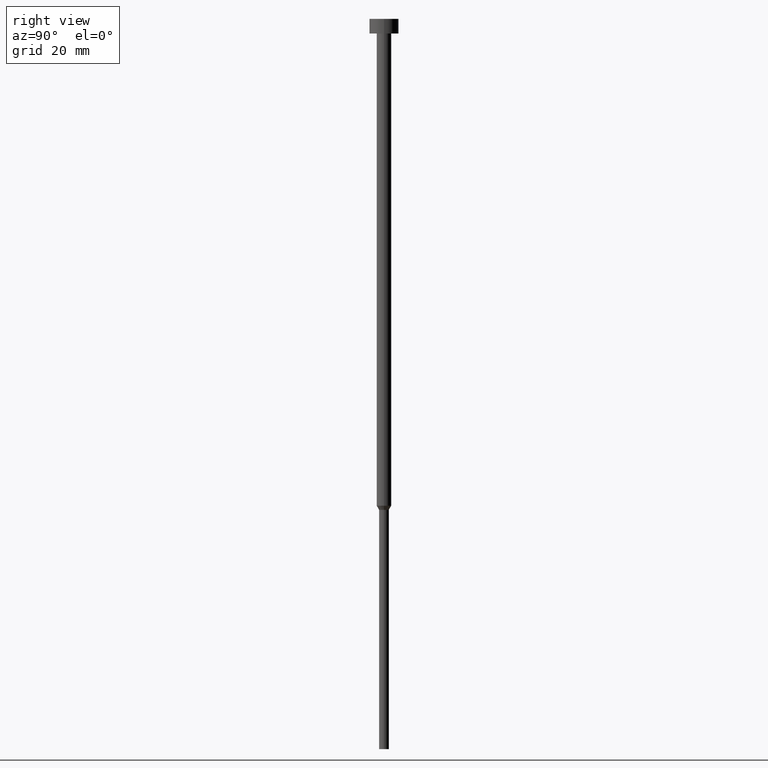
[diagram: clean part render]
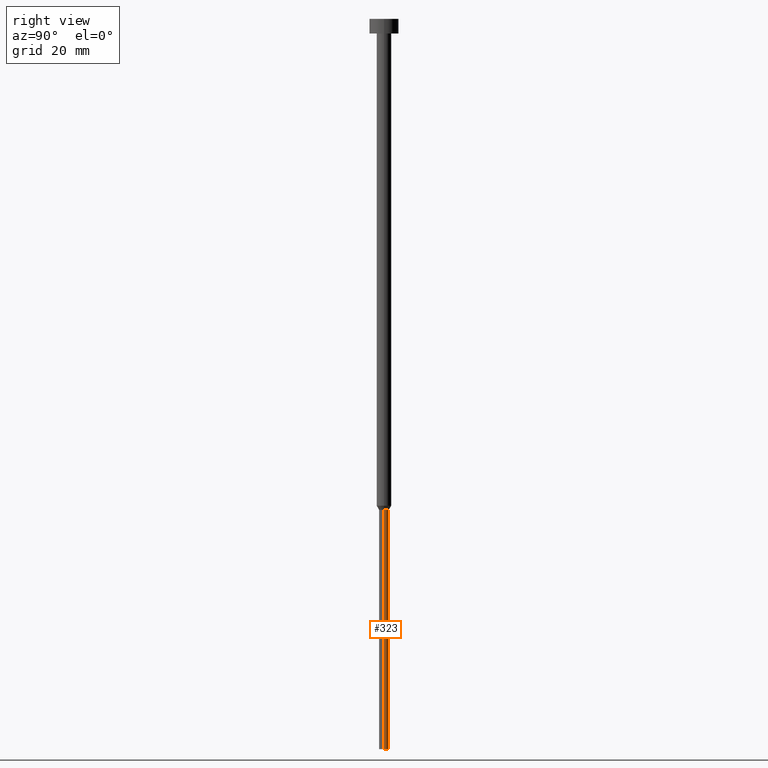
[diagram: same view with one face highlighted and labeled with its STEP entity id]
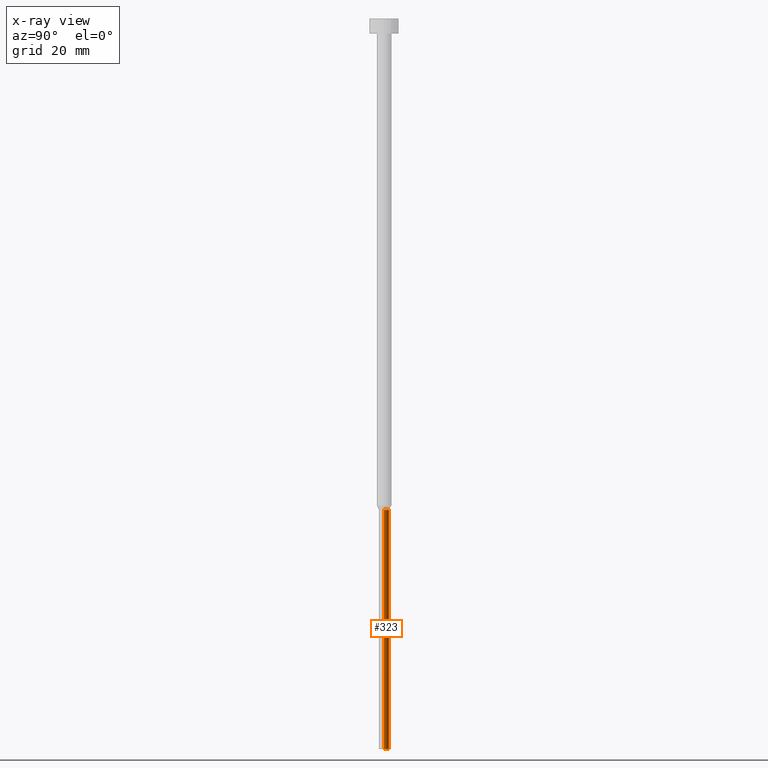
[diagram: x-ray of the same camera — body ghosted, the highlighted face saturated]
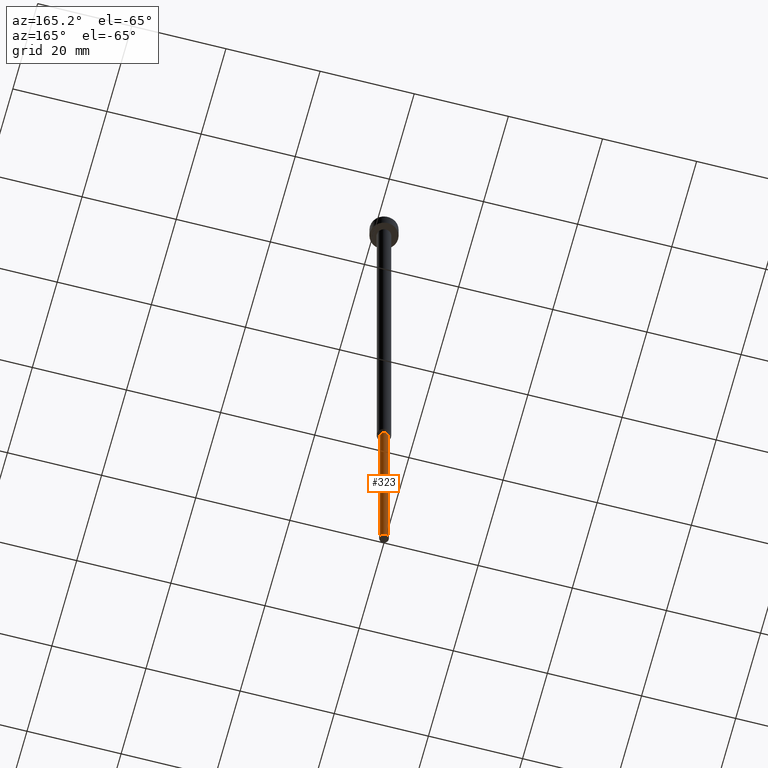
[diagram: same view with one face highlighted and labeled with its STEP entity id]
A machine part, right view. The second image highlights one B-rep face of the part: STEP entity #323.
The next image is the same camera in x-ray: the body ghosted, the highlighted face saturated — about 0% of this face is hidden behind the body in this view.
A second angle (auxiliary view) of the same face is appended — the face is thin or edge-on in the first view.
In plain terms, the highlighted cylindrical surface (edge-blend (fillet) strip) has radius 1 mm, axis along (-0, -0, 1).
Its self-contained STEP definition (entity closure, byte-faithful):
#1 = CARTESIAN_POINT ( 'NONE',  ( 1.000000000000000000, 0.000000000000000000, -150.0000000000000000 ) ) ;
#9 = ORIENTED_EDGE ( 'NONE', *, *, #192, .F. ) ;
#10 = DIRECTION ( 'NONE',  ( 1.000000000000000000, 0.000000000000000000, 0.000000000000000000 ) ) ;
#11 = VECTOR ( 'NONE', #70, 1000.000000000000000 ) ;
#14 = VERTEX_POINT ( 'NONE', #102 ) ;
#19 = DIRECTION ( 'NONE',  ( -0.000000000000000000, -0.000000000000000000, 1.000000000000000000 ) ) ;
#34 = FACE_OUTER_BOUND ( 'NONE', #153, .T. ) ;
#50 = ORIENTED_EDGE ( 'NONE', *, *, #221, .T. ) ;
#68 = CARTESIAN_POINT ( 'NONE',  ( -1.000000000000000000, 1.224646799147353207E-16, 0.000000000000000000 ) ) ;
#70 = DIRECTION ( 'NONE',  ( -0.000000000000000000, -0.000000000000000000, 1.000000000000000000 ) ) ;
#74 = VERTEX_POINT ( 'NONE', #298 ) ;
#84 = AXIS2_PLACEMENT_3D ( 'NONE', #133, #265, #10 ) ;
#102 = CARTESIAN_POINT ( 'NONE',  ( -1.000000000000000000, 1.224646799147353207E-16, -150.0000000000000000 ) ) ;
#105 = EDGE_CURVE ( 'NONE', #215, #74, #148, .T. ) ;
#126 = CYLINDRICAL_SURFACE ( 'NONE', #84, 1.000000000000000000 ) ;
#133 = CARTESIAN_POINT ( 'NONE',  ( 0.000000000000000000, 0.000000000000000000, 0.000000000000000000 ) ) ;
#148 = CIRCLE ( 'NONE', #151, 1.000000000000000000 ) ;
#151 = AXIS2_PLACEMENT_3D ( 'NONE', #326, #19, #295 ) ;
#152 = ORIENTED_EDGE ( 'NONE', *, *, #187, .T. ) ;
#153 = EDGE_LOOP ( 'NONE', ( #152, #50, #235, #9 ) ) ;
#186 = CARTESIAN_POINT ( 'NONE',  ( 1.000000000000000000, 0.000000000000000000, -100.8660254037844481 ) ) ;
#187 = EDGE_CURVE ( 'NONE', #343, #14, #219, .T. ) ;
#192 = EDGE_CURVE ( 'NONE', #343, #215, #216, .T. ) ;
#194 = DIRECTION ( 'NONE',  ( -0.000000000000000000, -0.000000000000000000, 1.000000000000000000 ) ) ;
#210 = LINE ( 'NONE', #68, #304 ) ;
#212 = AXIS2_PLACEMENT_3D ( 'NONE', #249, #194, #300 ) ;
#215 = VERTEX_POINT ( 'NONE', #186 ) ;
#216 = LINE ( 'NONE', #322, #11 ) ;
#219 = CIRCLE ( 'NONE', #212, 1.000000000000000000 ) ;
#221 = EDGE_CURVE ( 'NONE', #14, #74, #210, .T. ) ;
#235 = ORIENTED_EDGE ( 'NONE', *, *, #105, .F. ) ;
#249 = CARTESIAN_POINT ( 'NONE',  ( 0.000000000000000000, 0.000000000000000000, -150.0000000000000000 ) ) ;
#260 = DIRECTION ( 'NONE',  ( -0.000000000000000000, -0.000000000000000000, 1.000000000000000000 ) ) ;
#265 = DIRECTION ( 'NONE',  ( -0.000000000000000000, -0.000000000000000000, 1.000000000000000000 ) ) ;
#295 = DIRECTION ( 'NONE',  ( 1.000000000000000000, 0.000000000000000000, 0.000000000000000000 ) ) ;
#298 = CARTESIAN_POINT ( 'NONE',  ( -1.000000000000000000, 1.224646799147353207E-16, -100.8660254037844481 ) ) ;
#300 = DIRECTION ( 'NONE',  ( 1.000000000000000000, 0.000000000000000000, 0.000000000000000000 ) ) ;
#304 = VECTOR ( 'NONE', #260, 1000.000000000000000 ) ;
#322 = CARTESIAN_POINT ( 'NONE',  ( 1.000000000000000000, 0.000000000000000000, 0.000000000000000000 ) ) ;
#323 = ADVANCED_FACE ( 'NONE', ( #34 ), #126, .T. ) ;
#326 = CARTESIAN_POINT ( 'NONE',  ( 0.000000000000000000, 0.000000000000000000, -100.8660254037844481 ) ) ;
#343 = VERTEX_POINT ( 'NONE', #1 ) ;